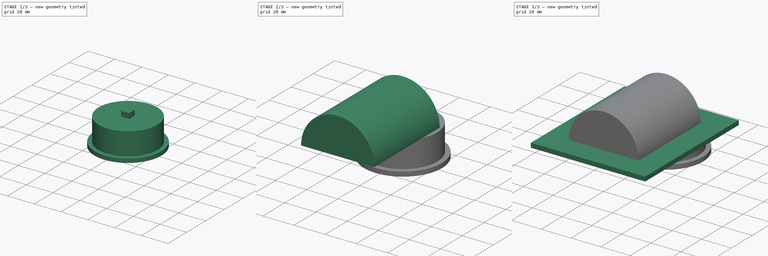
[diagram: build sequence overview — one tinted view per stage of 3, left to right]
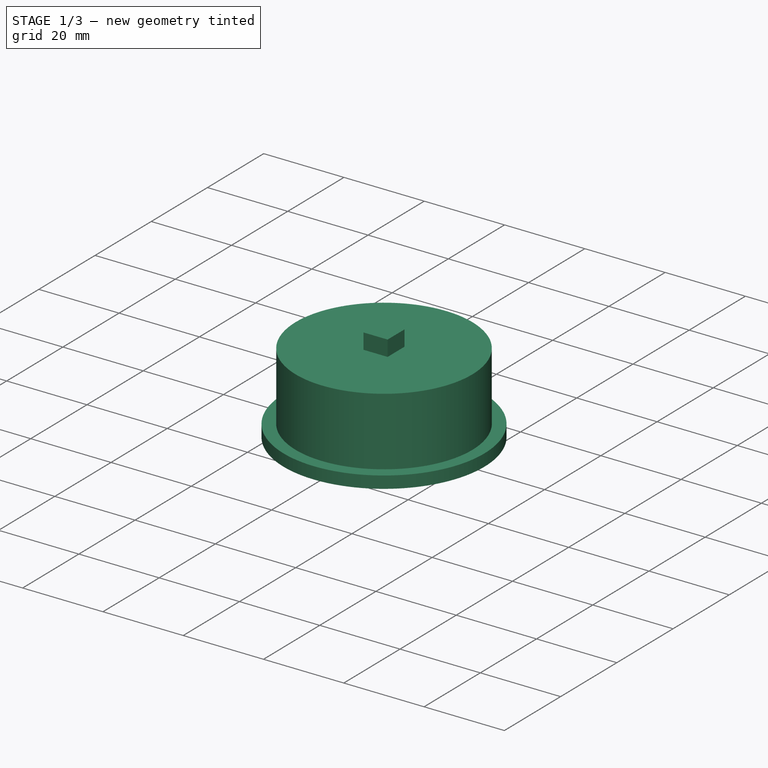
[diagram: stage 1 of 3 — iso view after this stage's code; geometry added in this stage tinted green]
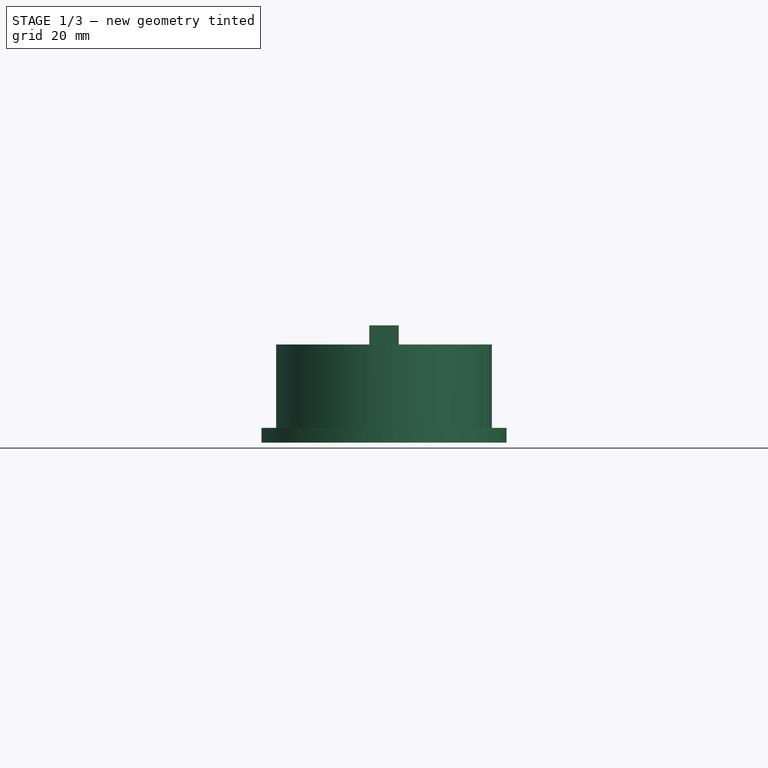
[diagram: stage 1 of 3 — front view after this stage's code; geometry added in this stage tinted green]
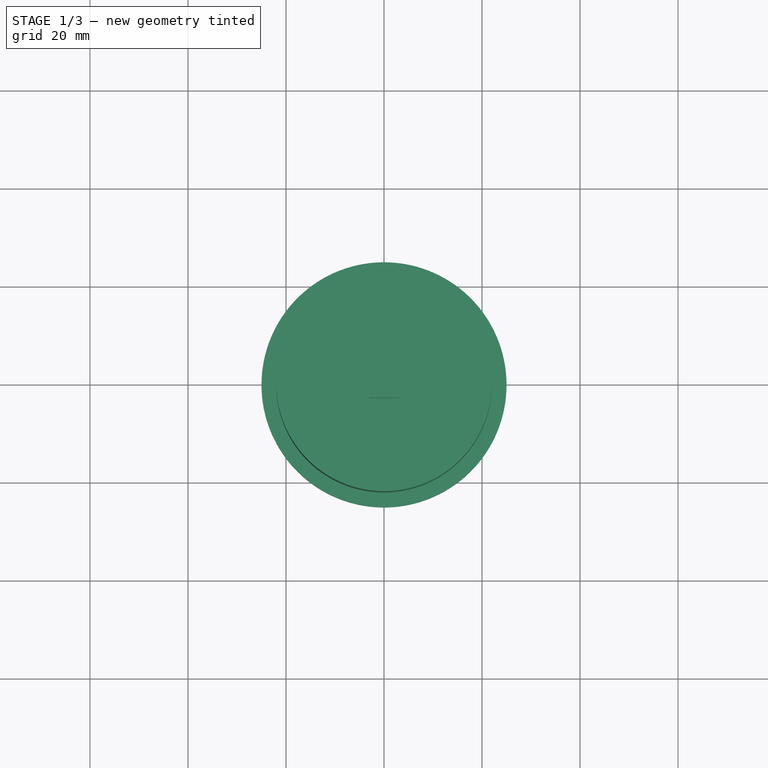
[diagram: stage 1 of 3 — top view after this stage's code; geometry added in this stage tinted green]
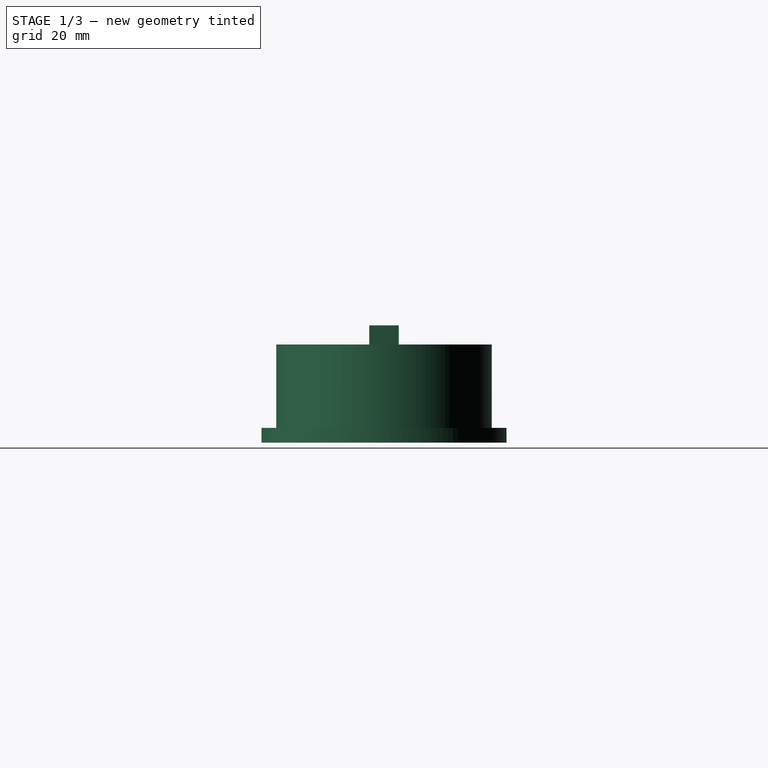
[diagram: stage 1 of 3 — right view after this stage's code; geometry added in this stage tinted green]
FCSTD DOCUMENT  (FreeCAD 1.1R38926 (Git))
Label: Половинка штампа.20241012-175514
License: All rights reserved
LicenseURL: https://en.wikipedia.org/wiki/All_rights_reserved
objects: Sketcher::SketchObject×4, PartDesign::Pad×2, PartDesign::Body×2, PartDesign::Revolution×1, PartDesign::Pocket×1, PartDesign::AdditiveBox×1
note: 25 computed .brp shape members not serialized (recipe doc carries the construction recipe); baked Part::Feature solids carry a one-line shape summary decoded from their .brp

FEATURE [Sketcher::SketchObject] Sketch002
  ArcFitTolerance = 1e-06
  AttachmentSupport = -> [XZ_Plane001]
  FullyConstrained = false
  MakeInternals = false
  MapMode = 5
  Placement = pos=(0,0,0) rot=(1,0,0;1.5708rad)
  sketch-geometry (6):
    g0: LineSegment StartX=-22 StartY=-3.09159 StartZ=0 EndX=-22 EndY=-20.0916 EndZ=0
    g1: LineSegment StartX=-22 StartY=-20.0916 StartZ=0 EndX=-25 EndY=-20.0916 EndZ=0
    g2: LineSegment StartX=-25 StartY=-20.0916 StartZ=0 EndX=-25 EndY=-23.0916 EndZ=0
    g3: LineSegment StartX=-25 StartY=-23.0916 StartZ=0 EndX=0 EndY=-23.0916 EndZ=0
    g4: LineSegment StartX=0 StartY=-23.0916 StartZ=0 EndX=0 EndY=-3.09159 EndZ=0
    g5: LineSegment StartX=0 StartY=-3.09159 StartZ=0 EndX=-22 EndY=-3.09159 EndZ=0
  constraints (17):
    c: Coincident(g0,g1)
    c: Coincident(g2,g3)
    c: Horizontal(g3)
    c: Coincident(g3,g4)
    c: Coincident(g4,g5)
    c: Coincident(g5,g0)
    c: Vertical(g2)
    c: Vertical(g0)
    c: Horizontal(g5)
    c: Vertical(g4)
    c: DistanceY(g2,g2) = 3
    c: Distance(g1,g1) = 3
    c: DistanceX(g3,g3) = 25
    c: Coincident(g1,g2)
    c: Horizontal(g1)
    c: PointOnObject(g4,g-2)
    c: DistanceY(g4,g4) = 20
FEATURE [PartDesign::Revolution] Revolution
  Angle = 360
  Angle2 = 60
  Axis = (0,2e-16,1)
  Base = (0,0,0)
  Placement = pos=(0,0,0) rot=(1,0,0;1.5708rad)
  Profile = -> Sketch002
  ReferenceAxis = -> Sketch002 [V_Axis]
  Refine = true
  Suppressed = false
  Type = 0
FEATURE [PartDesign::Body] Body  label="Тело"
  AllowCompound = false
  Group = -> [Sketch,Pad,Sketch001,Pad001,Sketch003,Pocket]
  Origin = -> Origin
  Tip = -> Pocket
FEATURE [PartDesign::AdditiveBox] Box
  AttacherType = Attacher::AttachEngine3D
  AttachmentOffset = pos=(-3,-3,0) rot=(0,0,1;0rad)
  AttachmentSupport = -> [Revolution]
  BaseFeature = -> Revolution
  Height = 3.9
  Length = 6
  MapMode = 5
  Placement = pos=(3,3,-3.09159) rot=(0,0,1;3.14159rad)
  Refine = true
  Suppressed = false
  Width = 6
FEATURE [PartDesign::Body] Body001  label="Тело001"
  AllowCompound = false
  Group = -> [Sketch002,Revolution,Box]
  Origin = -> Origin001
  Placement = pos=(0,-32,-16) rot=(0,0,1;0rad)
  Tip = -> Box
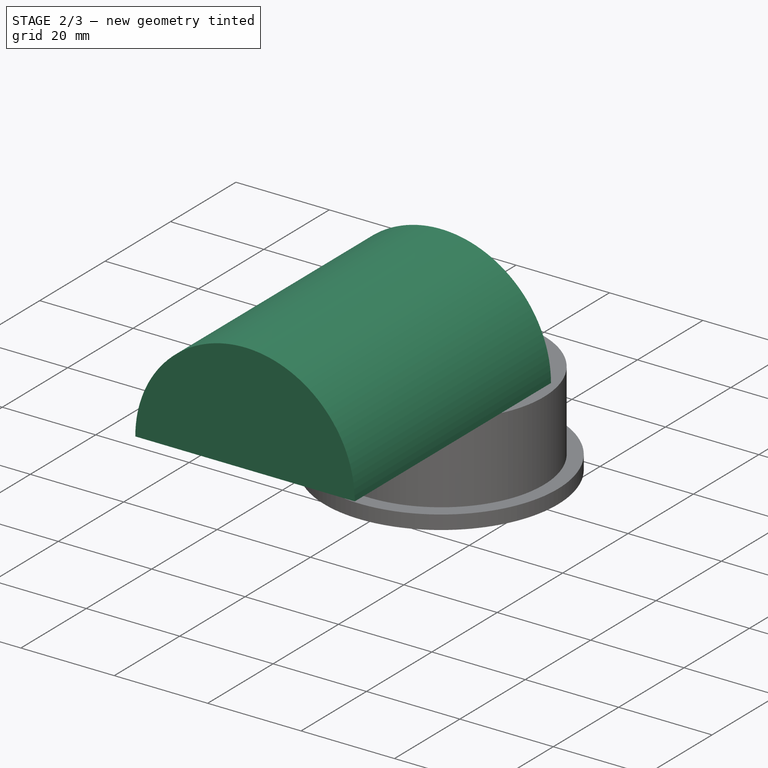
[diagram: stage 2 of 3 — iso view after this stage's code; geometry added in this stage tinted green]
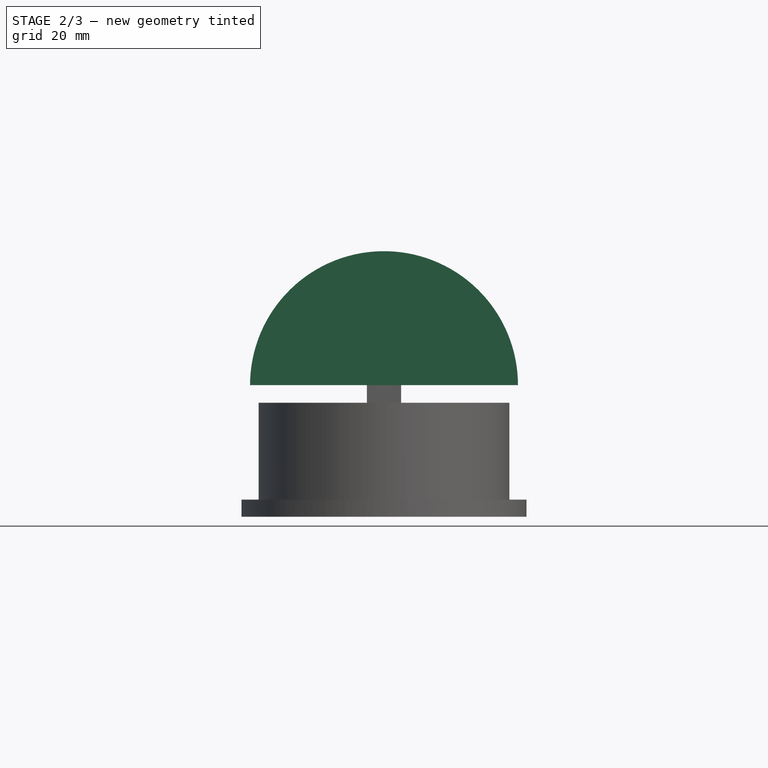
[diagram: stage 2 of 3 — front view after this stage's code; geometry added in this stage tinted green]
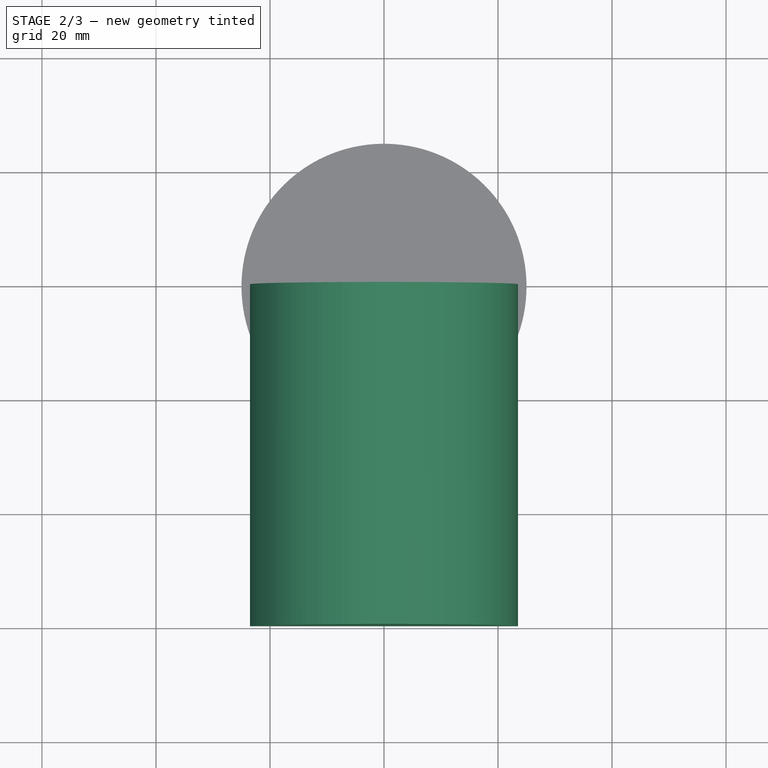
[diagram: stage 2 of 3 — top view after this stage's code; geometry added in this stage tinted green]
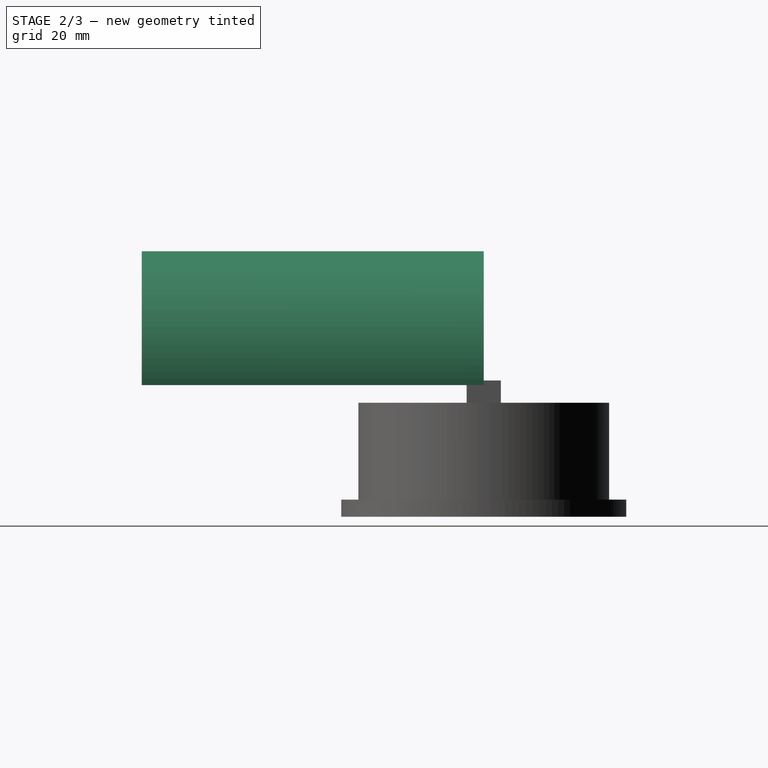
[diagram: stage 2 of 3 — right view after this stage's code; geometry added in this stage tinted green]
FEATURE [Sketcher::SketchObject] Sketch
  ArcFitTolerance = 1e-06
  AttachmentSupport = -> [XZ_Plane]
  FullyConstrained = true
  MakeInternals = false
  MapMode = 5
  Placement = pos=(0,0,0) rot=(1,0,0;1.5708rad)
  sketch-geometry (2):
    g0: ArcOfCircle CenterX=0 CenterY=0 CenterZ=0 NormalX=0 NormalY=0 NormalZ=1 AngleXU=0 Radius=23.5 StartAngle=0 EndAngle=3.14159
    g1: LineSegment StartX=-23.5 StartY=2.9e-15 StartZ=0 EndX=23.5 EndY=0 EndZ=0
  constraints (6):
    c: Coincident(g0,g-1)
    c: PointOnObject(g0,g-1)
    c: PointOnObject(g0,g-1)
    c: Coincident(g1,g0)
    c: Coincident(g1,g0)
    c: Diameter(g0) = 47
FEATURE [PartDesign::Pad] Pad
  Direction = (0,-1,2e-16)
  Length = 60
  Length2 = 10
  Placement = pos=(0,0,0) rot=(1,0,0;1.5708rad)
  Profile = -> Sketch
  ReferenceAxis = -> Sketch [N_Axis]
  Refine = true
  Suppressed = false
  Type = 0
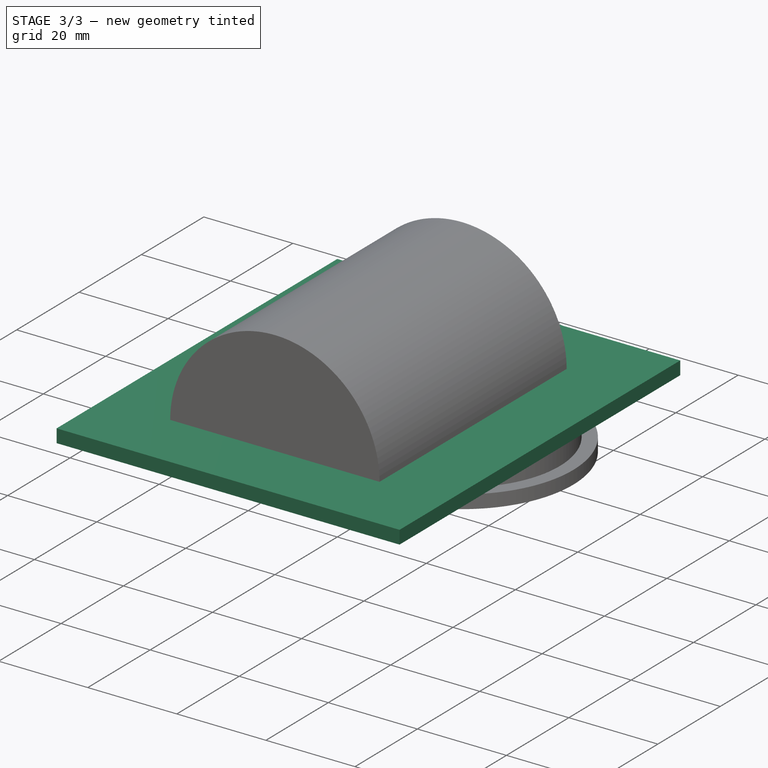
[diagram: stage 3 of 3 — iso view after this stage's code; geometry added in this stage tinted green]
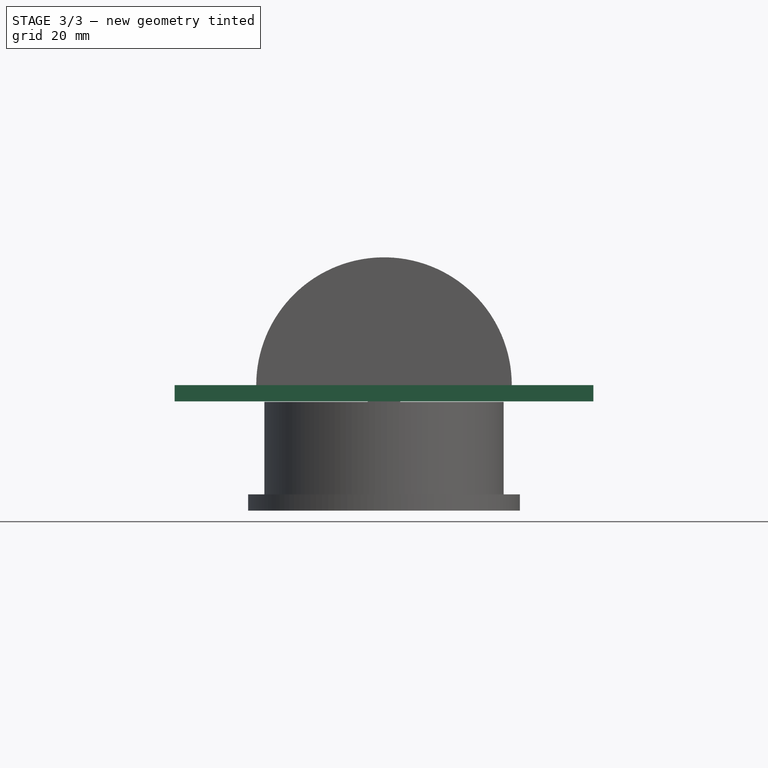
[diagram: stage 3 of 3 — front view after this stage's code; geometry added in this stage tinted green]
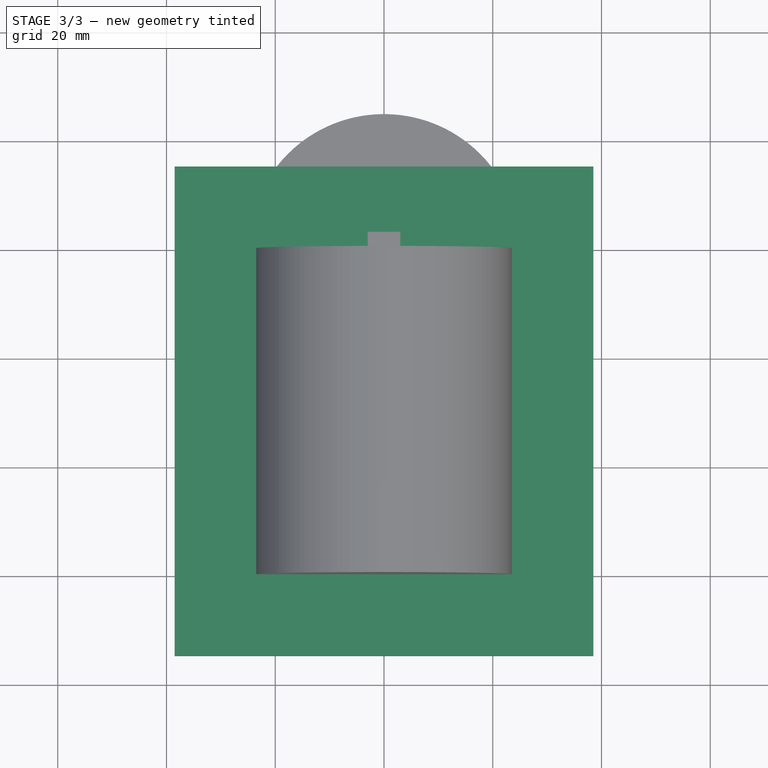
[diagram: stage 3 of 3 — top view after this stage's code; geometry added in this stage tinted green]
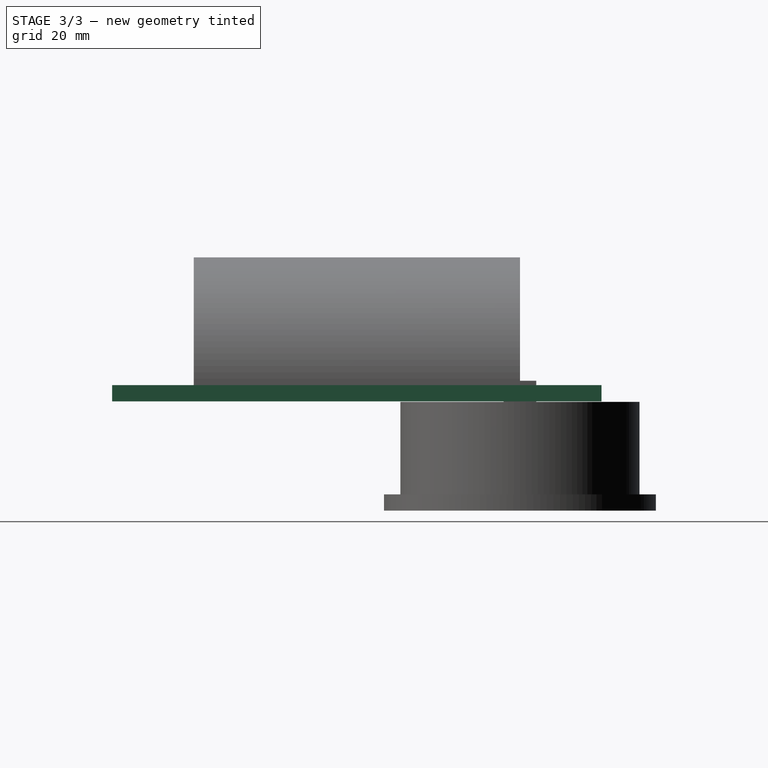
[diagram: stage 3 of 3 — right view after this stage's code; geometry added in this stage tinted green]
FEATURE [Sketcher::SketchObject] Sketch001
  ArcFitTolerance = 1e-06
  AttachmentSupport = -> [Pad]
  ExternalGeometry = -> [Pad]
  FullyConstrained = false
  MakeInternals = false
  MapMode = 5
  Placement = pos=(0,0,1.5e-15) rot=(1,0,0;3.14159rad)
  sketch-geometry (8):
    g0: LineSegment StartX=-38.5 StartY=75 StartZ=0 EndX=-38.5 EndY=-15 EndZ=0
    g1: LineSegment StartX=-38.5 StartY=-15 StartZ=0 EndX=38.5 EndY=-15 EndZ=0
    g2: LineSegment StartX=38.5 StartY=-15 StartZ=0 EndX=38.5 EndY=75 EndZ=0
    g3: LineSegment StartX=38.5 StartY=75 StartZ=0 EndX=-38.5 EndY=75 EndZ=0
    g4: LineSegment [constr] StartX=-23.5 StartY=60 StartZ=0 EndX=-38.5 EndY=60 EndZ=0
    g5: LineSegment [constr] StartX=-23.5 StartY=60 StartZ=0 EndX=-23.5 EndY=75 EndZ=0
    g6: LineSegment [constr] StartX=23.5 StartY=0 StartZ=0 EndX=23.5 EndY=-15 EndZ=0
    g7: LineSegment [constr] StartX=23.5 StartY=0 StartZ=0 EndX=38.5 EndY=0 EndZ=0
  constraints (20):
    c: Coincident(g0,g1)
    c: Coincident(g1,g2)
    c: Coincident(g2,g3)
    c: Coincident(g3,g0)
    c: Vertical(g0)
    c: Vertical(g2)
    c: Horizontal(g1)
    c: Horizontal(g3)
    c: DistanceX(g0,g-4) = 15
    c: PointOnObject(g4,g0)
    c: PointOnObject(g5,g3)
    c: Vertical(g5)
    c: PointOnObject(g6,g1)
    c: PointOnObject(g7,g2)
    c: Equal(g7,g6)
    c: Equal(g6,g5)
    c: Equal(g5,g4)
    c: Horizontal(g4)
    c: Horizontal(g7)
    c: Vertical(g6)
FEATURE [PartDesign::Pad] Pad001
  BaseFeature = -> Pad
  Direction = (0,0,-1)
  Length = 3
  Length2 = 3
  Placement = pos=(0,0,0) rot=(1,0,0;1.5708rad)
  Profile = -> Sketch001
  ReferenceAxis = -> Sketch001 [N_Axis]
  Refine = true
  Suppressed = false
  Type = 0
FEATURE [Sketcher::SketchObject] Sketch003
  ArcFitTolerance = 1e-06
  AttachmentSupport = -> [Pad001]
  ExternalGeometry = -> [Pad001]
  FullyConstrained = true
  MakeInternals = false
  MapMode = 5
  Placement = pos=(0,0,-3) rot=(1,0,0;3.14159rad)
  sketch-geometry (5):
    g0: LineSegment StartX=-3 StartY=33 StartZ=0 EndX=-3 EndY=27 EndZ=0
    g1: LineSegment StartX=-3 StartY=27 StartZ=0 EndX=3 EndY=27 EndZ=0
    g2: LineSegment StartX=3 StartY=27 StartZ=0 EndX=3 EndY=33 EndZ=0
    g3: LineSegment StartX=3 StartY=33 StartZ=0 EndX=-3 EndY=33 EndZ=0
    g4: GeomPoint X=-2.63825e-11 Y=30 Z=0
  constraints (12):
    c: Coincident(g0,g1)
    c: Coincident(g1,g2)
    c: Coincident(g2,g3)
    c: Coincident(g3,g0)
    c: Vertical(g0)
    c: Vertical(g2)
    c: Horizontal(g1)
    c: Horizontal(g3)
    c: Equal(g3,g0)
    c: Symmetric(g0,g2,g4)
    c: DistanceX(g3,g3) = 6
    c: Symmetric(g-4,g-3,g4)
FEATURE [PartDesign::Pocket] Pocket
  BaseFeature = -> Pad001
  Direction = (0,0,1)
  Length = 4
  Length2 = 5
  Placement = pos=(0,0,0) rot=(1,0,0;1.5708rad)
  Profile = -> Sketch003
  ReferenceAxis = -> Sketch003 [N_Axis]
  Refine = true
  Suppressed = false
  Type = 0
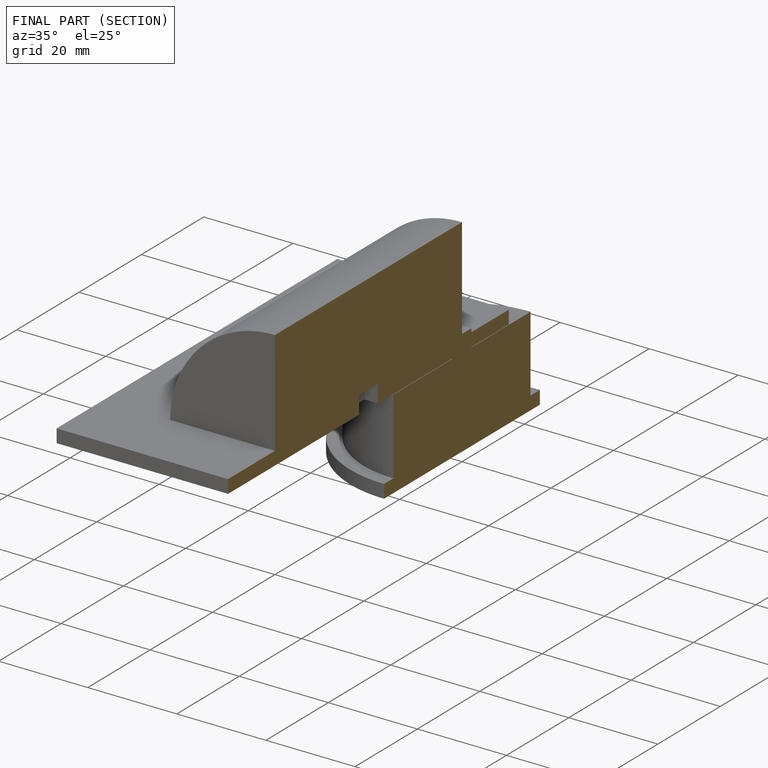
[diagram: finished part — half-section view (interior)]
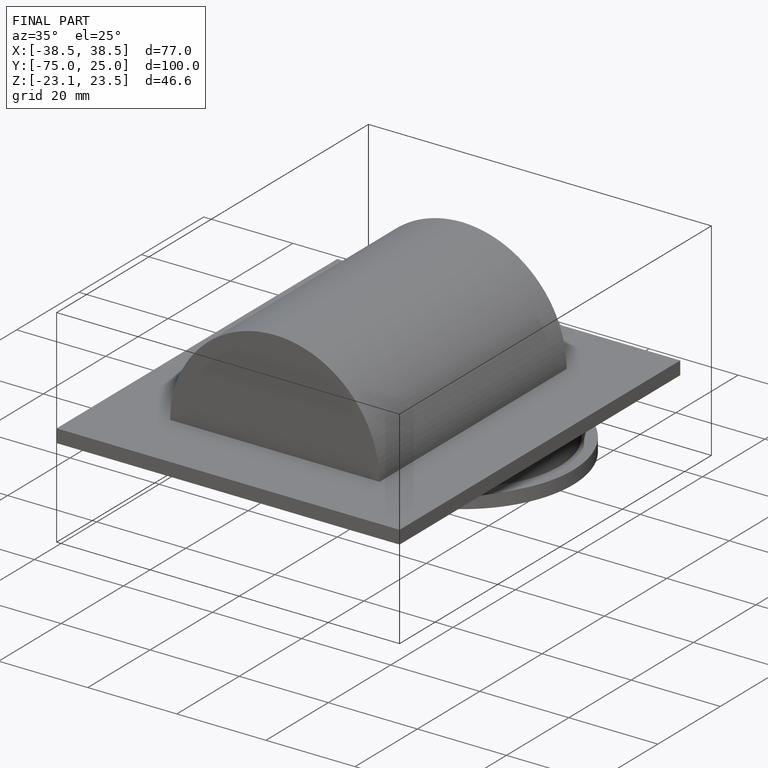
[diagram: finished part — iso view with bounding-box wireframe]
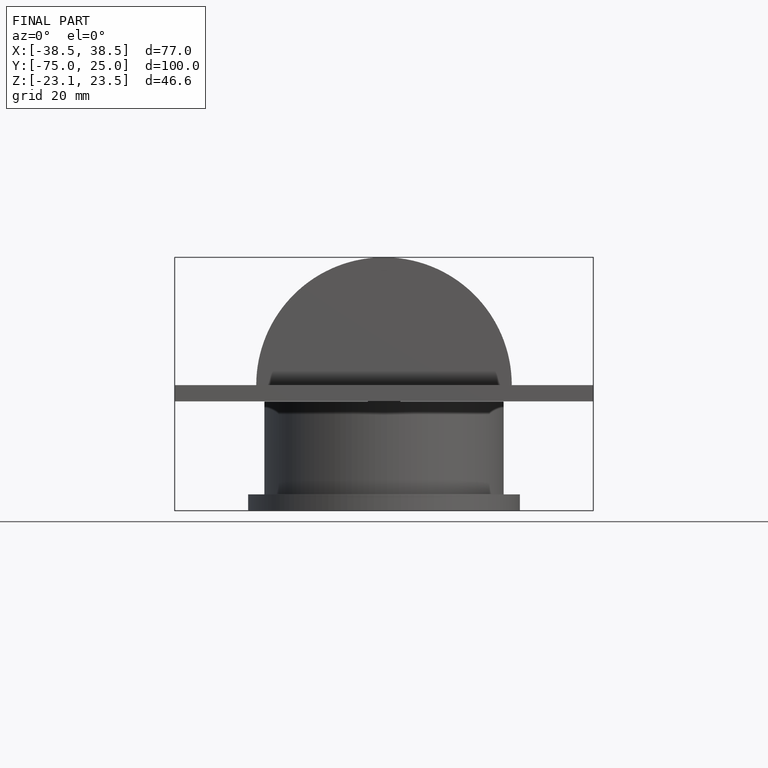
[diagram: finished part — front view with bounding-box wireframe]
